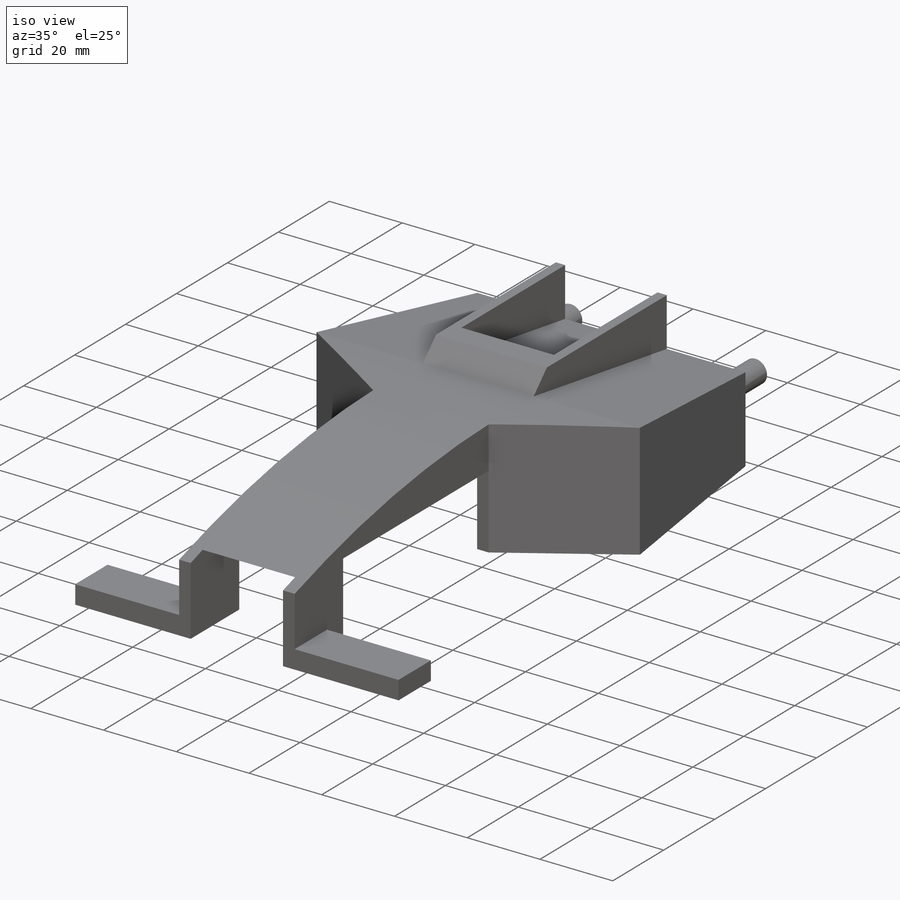
[diagram: iso view]
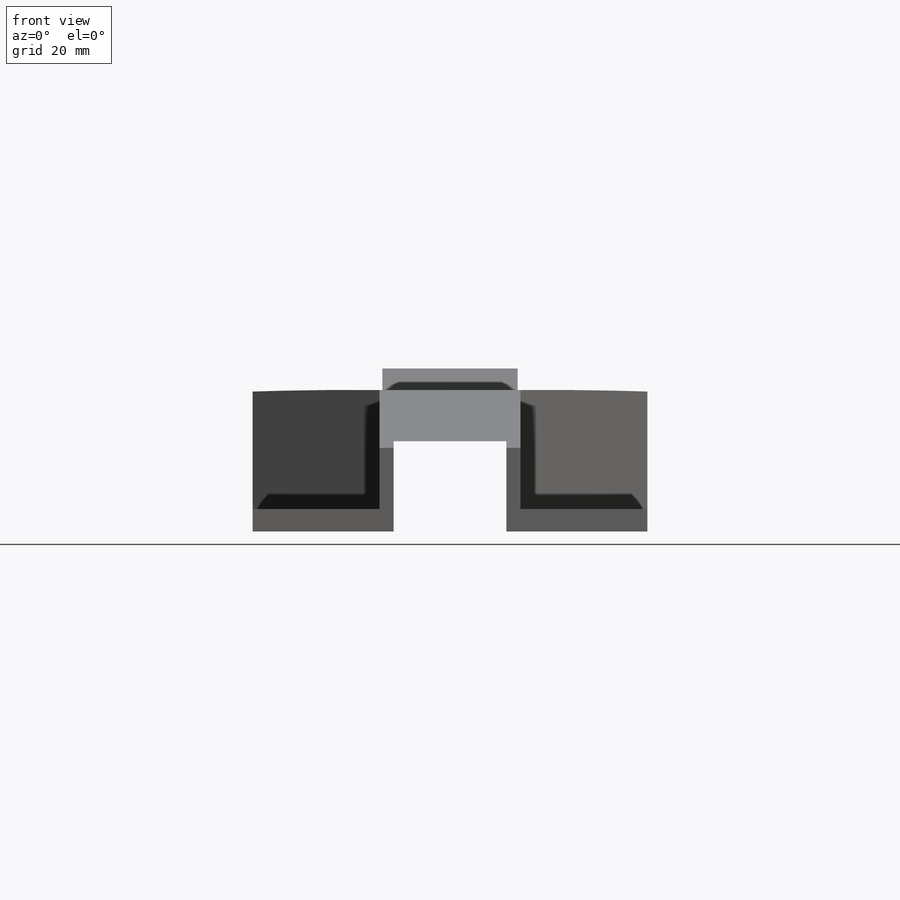
[diagram: front view]
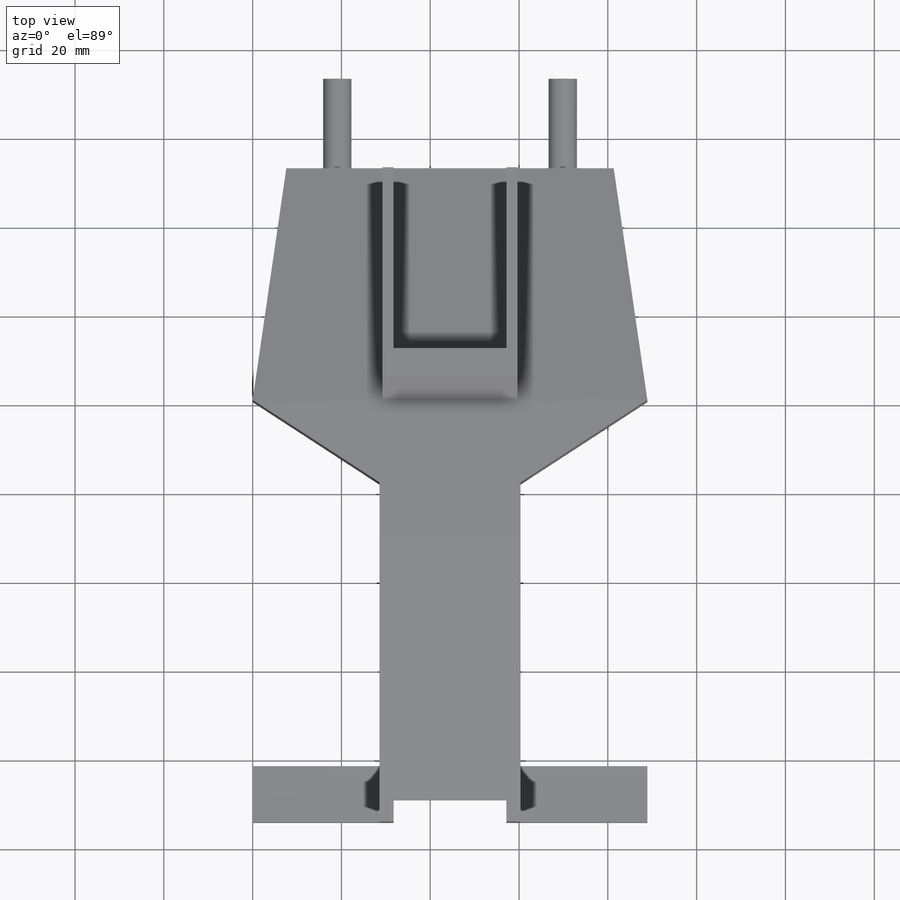
[diagram: top view]
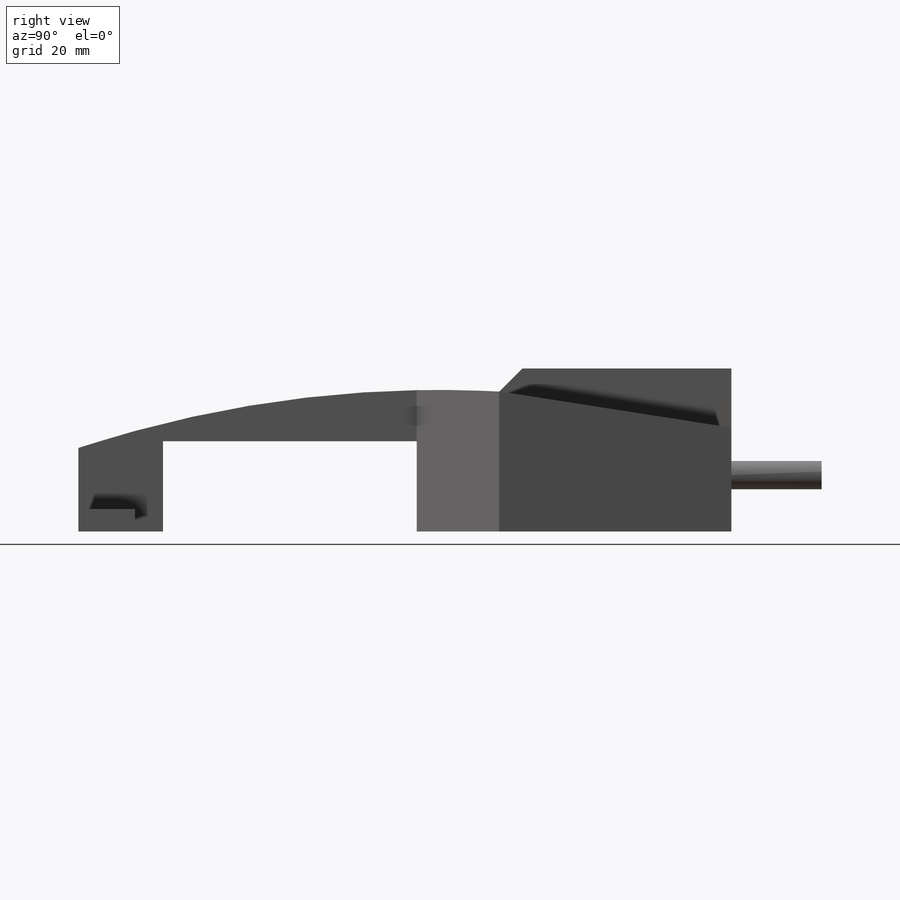
[diagram: right view]
SOLIDWORKS PART (.sldprt)
format: sldprt  version: not decoded by parser v0  size: 568,832 bytes
history: native  units: mm
features: sketch x25, cut_extrude x22, extrude x3, chamfer x2, material x1, mirror x1, shell x1 (+11 scaffold rows collapsed)
feature tree (66):
  scaffold x11  (default folders/planes/origin — collapsed)
  material  "Material <not specified>"
  sketch  "Sketch1"  dims[D1=254.0mm D2=101.6mm]
  extrude  "Boss-Extrude1"  Depth=88.9mm
  sketch  "Sketch4"
  cut_extrude  "Cut-Extrude1"  [1 undecoded]
  sketch  "Sketch5"  dims[D1=44.45mm]
  cut_extrude  "Cut-Extrude2"  [1 undecoded]
  sketch  "Sketch6"
  cut_extrude  "Cut-Extrude3"  [1 undecoded]
  sketch  "Sketch8"  dims[D1=15.24mm]
  extrude  "Boss-Extrude2"  Depth=25.4mm
  sketch  "Sketch9"
  cut_extrude  "Cut-Extrude4"  [1 undecoded]
  sketch  "Sketch10"
  cut_extrude  "Cut-Extrude5"  [1 undecoded]
  sketch  "Sketch11"
  cut_extrude  "Cut-Extrude6"  [1 undecoded]
  sketch  "Sketch12"  dims[D1=28.575mm D2=12.7mm D3=63.5mm]
  cut_extrude  "Cut-Extrude7"  [1 undecoded]
  sketch  "Sketch13"
  cut_extrude  "Cut-Extrude8"  [1 undecoded]
  sketch  "Sketch14"  dims[D1=5.08mm D2=28.575mm]
  cut_extrude  "Cut-Extrude9"  Depth=25.4mm
  sketch  "Sketch15"
  cut_extrude  "Cut-Extrude10"  [1 undecoded]
  sketch  "Sketch16"
  cut_extrude  "Cut-Extrude11"  [1 undecoded]
  sketch  "Sketch17"
  cut_extrude  "Cut-Extrude12"  Depth=28.575mm
  sketch  "Sketch18"
  cut_extrude  "Cut-Extrude13"  [1 undecoded]
  sketch  "Sketch19"  dims[D1=20.32mm D2=12.7mm]
  cut_extrude  "Cut-Extrude14"  [1 undecoded]
  sketch  "Sketch20"  dims[D1=57.15mm D2=20.32mm]
  cut_extrude  "Cut-Extrude15"  [1 undecoded]
  sketch  "Sketch21"  dims[D1=20.32mm D2=50.8mm]
  cut_extrude  "Cut-Extrude16"  [1 undecoded]
  mirror  "Mirror1"
  sketch  "Sketch22"  dims[D1=6.35mm D2=2.54mm D3=2.54mm]
  cut_extrude  "Cut-Extrude17"  [1 undecoded]
  sketch  "Sketch23"  dims[c1.D1=~12.559963mm c2.D1=30.0deg c2.D2=~15.25942mm c3.D2=30.0deg]
  cut_extrude  "Cut-Extrude18"  [1 undecoded]
  chamfer  "Chamfer1"  Distance=15.24mm Angle=73deg
  chamfer  "Chamfer2"  Distance=15.24mm Angle=73deg
  shell  "Shell1"  Thickness=2.54mm
  sketch  "Sketch25"
  cut_extrude  "Cut-Extrude19"  [1 undecoded]
  sketch  "Sketch26"
  cut_extrude  "Cut-Extrude20"  [1 undecoded]
  sketch  "Sketch27"
  cut_extrude  "Cut-Extrude21"  [1 undecoded]
  sketch  "Sketch28"
  cut_extrude  "Cut-Extrude22"  [1 undecoded]
  sketch  "Sketch29"  dims[D1=6.35mm D2=6.35mm D3=12.7mm D4=12.7mm D5=12.7mm D6=12.7mm]
  extrude  "Boss-Extrude3"  Depth=20.32mm
decode coverage: 19 of 54 modeling features carry decoded parameters
note: ~ marks probable driven/reference dimensions
note: 20 parameter values undecoded
summary: no parameter record found for 20 features
note: suppression state not decoded; provenance and decode notes live in map.json
